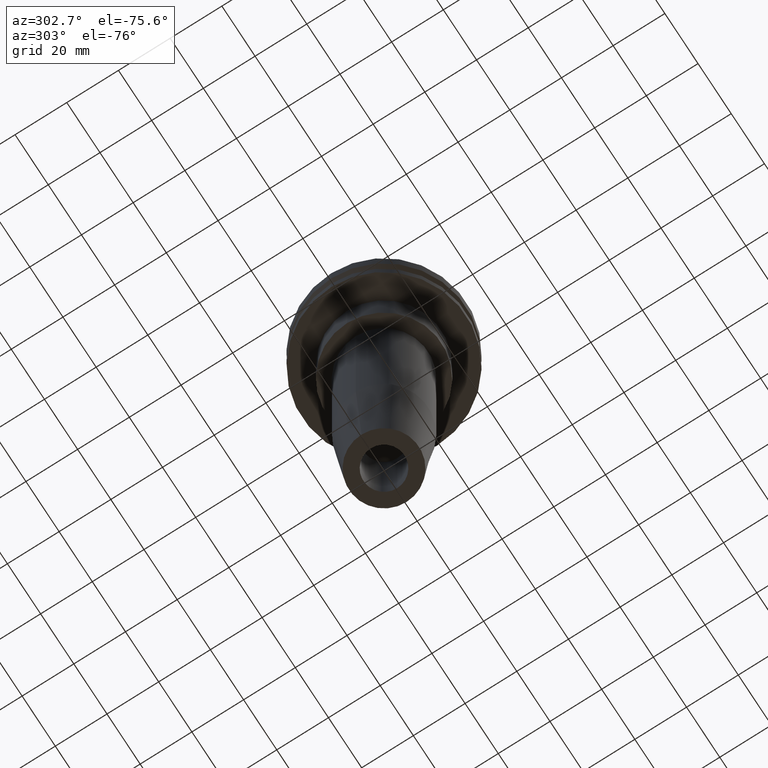
[diagram: clean part render]
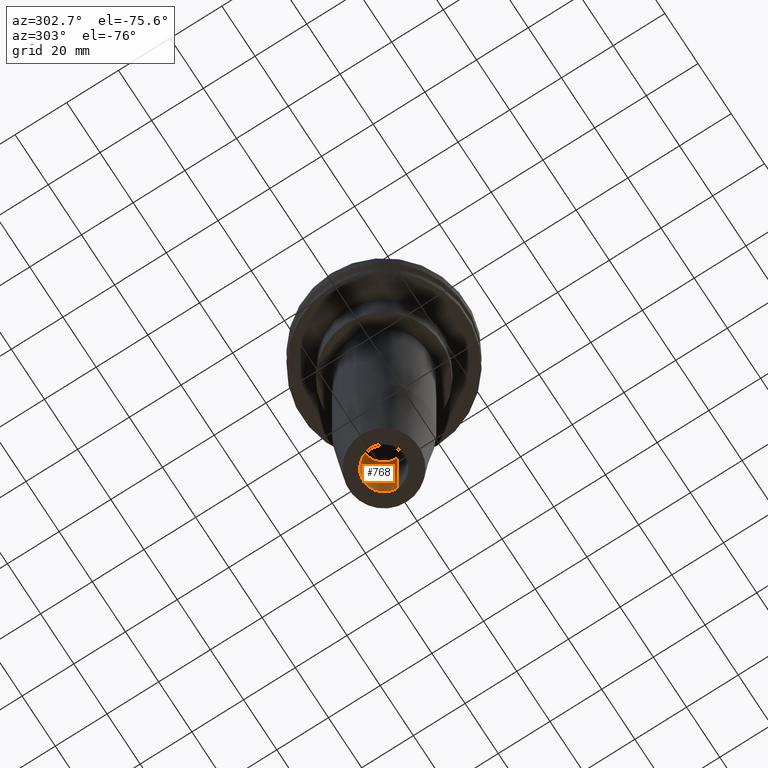
[diagram: same view with one face highlighted and labeled with its STEP entity id]
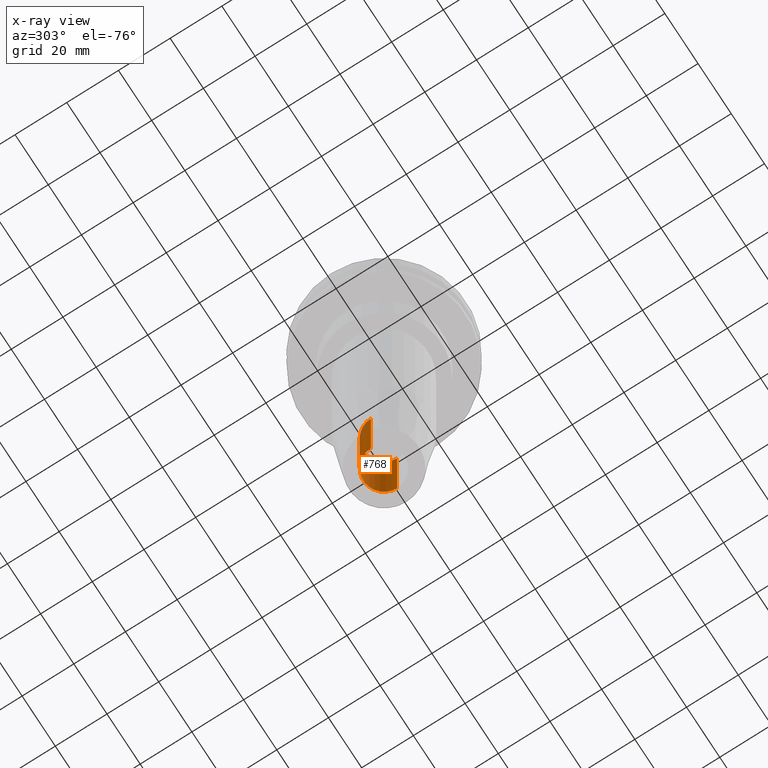
[diagram: x-ray of the same camera — body ghosted, the highlighted face saturated]
A machine part, auxiliary view. The second image highlights one B-rep face of the part: STEP entity #768.
The next image is the same camera in x-ray: the body ghosted, the highlighted face saturated — about 4% of this face is hidden behind the body in this view.
In plain terms, the highlighted cylindrical surface (edge-blend (fillet) strip) has radius 7.9375 mm, axis along (-0, -0, 1).
Its self-contained STEP definition (entity closure, byte-faithful):
#58 = VERTEX_POINT ( 'NONE', #338 ) ;
#70 = DIRECTION ( 'NONE',  ( 1.000000000000000000, 0.000000000000000000, 0.000000000000000000 ) ) ;
#137 = EDGE_CURVE ( 'NONE', #513, #58, #421, .T. ) ;
#156 = LINE ( 'NONE', #359, #163 ) ;
#163 = VECTOR ( 'NONE', #697, 1000.000000000000000 ) ;
#168 = AXIS2_PLACEMENT_3D ( 'NONE', #406, #202, #70 ) ;
#178 = AXIS2_PLACEMENT_3D ( 'NONE', #751, #291, #829 ) ;
#187 = EDGE_LOOP ( 'NONE', ( #329, #293, #721, #482 ) ) ;
#190 = EDGE_CURVE ( 'NONE', #595, #241, #194, .T. ) ;
#194 = CIRCLE ( 'NONE', #279, 7.937500000000007105 ) ;
#202 = DIRECTION ( 'NONE',  ( -0.000000000000000000, -0.000000000000000000, 1.000000000000000000 ) ) ;
#227 = EDGE_CURVE ( 'NONE', #241, #58, #156, .T. ) ;
#230 = CARTESIAN_POINT ( 'NONE',  ( 0.000000000000000000, 0.000000000000000000, -152.4000000000000057 ) ) ;
#241 = VERTEX_POINT ( 'NONE', #826 ) ;
#263 = LINE ( 'NONE', #541, #434 ) ;
#279 = AXIS2_PLACEMENT_3D ( 'NONE', #230, #621, #681 ) ;
#291 = DIRECTION ( 'NONE',  ( -0.000000000000000000, -0.000000000000000000, 1.000000000000000000 ) ) ;
#293 = ORIENTED_EDGE ( 'NONE', *, *, #190, .F. ) ;
#329 = ORIENTED_EDGE ( 'NONE', *, *, #227, .F. ) ;
#337 = CYLINDRICAL_SURFACE ( 'NONE', #168, 7.937500000000005329 ) ;
#338 = CARTESIAN_POINT ( 'NONE',  ( -7.937500000000003553, 9.720633968232124078E-16, -113.4000000000000057 ) ) ;
#359 = CARTESIAN_POINT ( 'NONE',  ( -7.937500000000005329, 9.720633968232124078E-16, 0.000000000000000000 ) ) ;
#406 = CARTESIAN_POINT ( 'NONE',  ( 0.000000000000000000, 0.000000000000000000, 0.000000000000000000 ) ) ;
#421 = CIRCLE ( 'NONE', #178, 7.937500000000003553 ) ;
#434 = VECTOR ( 'NONE', #726, 1000.000000000000000 ) ;
#482 = ORIENTED_EDGE ( 'NONE', *, *, #137, .T. ) ;
#513 = VERTEX_POINT ( 'NONE', #797 ) ;
#518 = EDGE_CURVE ( 'NONE', #595, #513, #263, .T. ) ;
#541 = CARTESIAN_POINT ( 'NONE',  ( 7.937500000000005329, 0.000000000000000000, 0.000000000000000000 ) ) ;
#595 = VERTEX_POINT ( 'NONE', #712 ) ;
#621 = DIRECTION ( 'NONE',  ( -0.000000000000000000, -0.000000000000000000, 1.000000000000000000 ) ) ;
#672 = FACE_OUTER_BOUND ( 'NONE', #187, .T. ) ;
#681 = DIRECTION ( 'NONE',  ( 1.000000000000000000, 0.000000000000000000, 0.000000000000000000 ) ) ;
#697 = DIRECTION ( 'NONE',  ( -0.000000000000000000, -0.000000000000000000, 1.000000000000000000 ) ) ;
#712 = CARTESIAN_POINT ( 'NONE',  ( 7.937500000000007105, 0.000000000000000000, -152.4000000000000057 ) ) ;
#721 = ORIENTED_EDGE ( 'NONE', *, *, #518, .T. ) ;
#726 = DIRECTION ( 'NONE',  ( -0.000000000000000000, -0.000000000000000000, 1.000000000000000000 ) ) ;
#751 = CARTESIAN_POINT ( 'NONE',  ( 0.000000000000000000, 0.000000000000000000, -113.4000000000000057 ) ) ;
#768 = ADVANCED_FACE ( 'NONE', ( #672 ), #337, .F. ) ;
#797 = CARTESIAN_POINT ( 'NONE',  ( 7.937500000000003553, 0.000000000000000000, -113.4000000000000057 ) ) ;
#826 = CARTESIAN_POINT ( 'NONE',  ( -7.937500000000007105, 9.720633968232126051E-16, -152.4000000000000057 ) ) ;
#829 = DIRECTION ( 'NONE',  ( 1.000000000000000000, 0.000000000000000000, 0.000000000000000000 ) ) ;